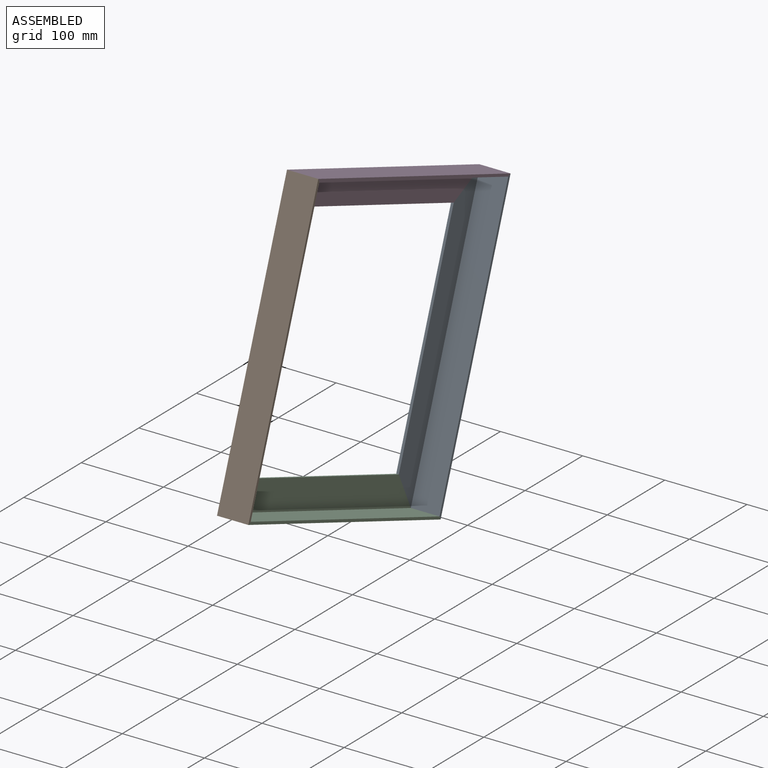
[diagram: assembled view]
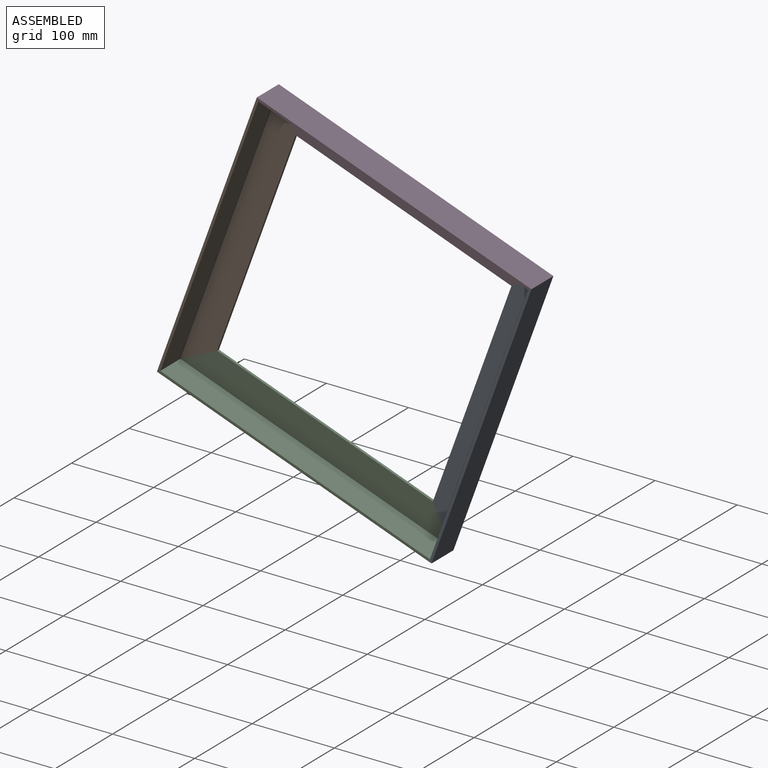
[diagram: assembled view, second angle]
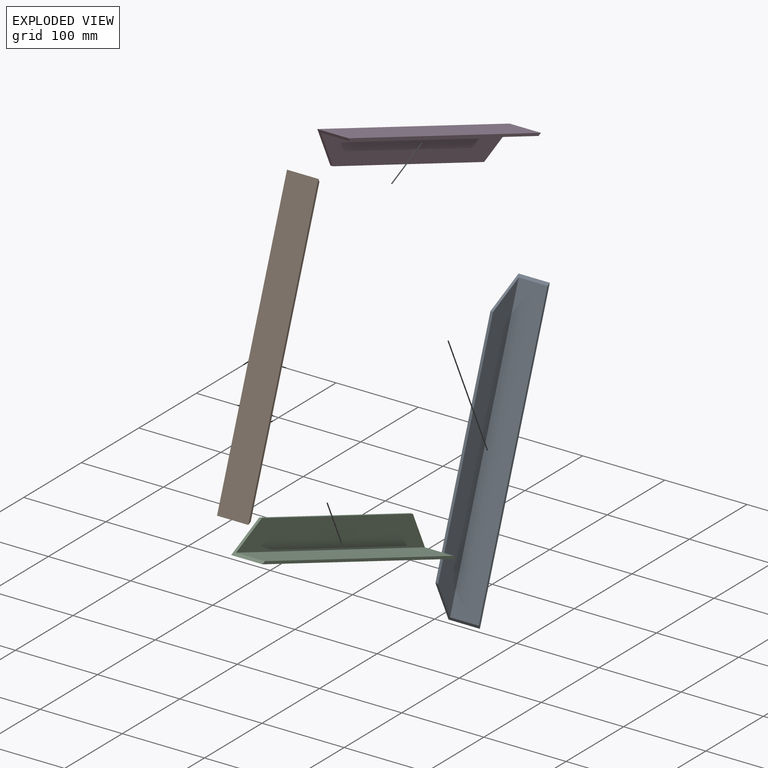
[diagram: exploded view]
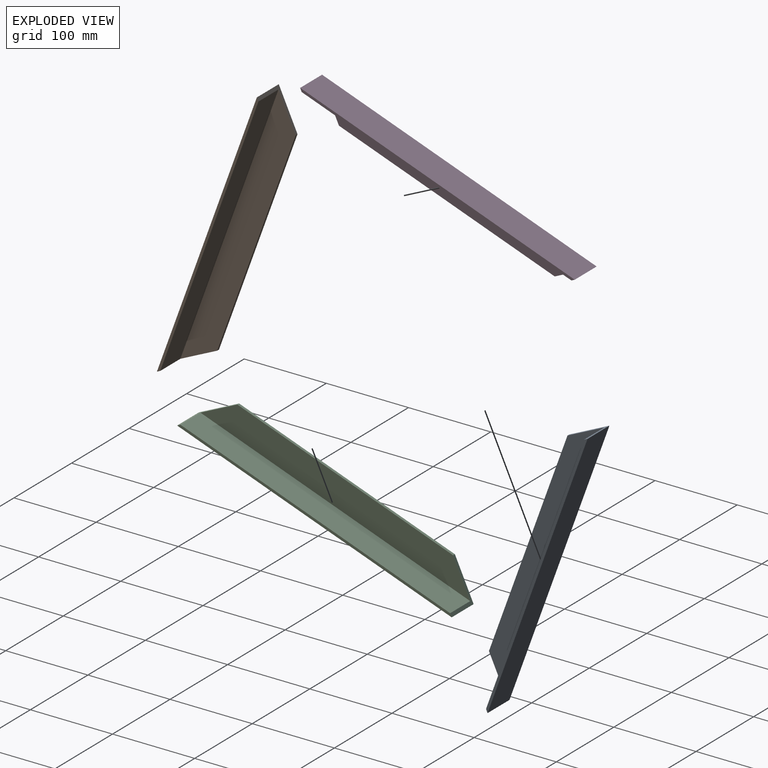
[diagram: exploded view, second angle]
ASSEMBLY  parts=4 mates=3
PART A: 8 faces, bbox 38.1x355.6x38.1 mm
  f0: plane 279.4x3.18mm, normal (0,0,1), area 887.1mm2, adj f1,f3,f6,f7
  f1: plane 355.6x38.1mm, normal (-1,0,0), area 12096.8mm2, adj f0,f5,f6,f7
  f2: plane 349.25x34.93mm, normal (0,0,1), area 12197.6mm2, adj f3,f4,f6,f7
  f3: plane 349.25x34.93mm, normal (1,0,0), area 10977.8mm2, adj f0,f2,f6,f7
  f4: plane 355.6x3.18mm, normal (1,0,0), area 1118.9mm2, adj f2,f5,f6,f7
  f5: plane 355.6x38.1mm, normal (0,0,-1), area 13548.4mm2, adj f1,f4,f6,f7
  f6: plane 38.1x38.1mm, normal (0,0.71,0.71), area 327.9mm2, adj f0,f1,f2,f3,f4,f5
  f7: plane 38.1x38.1mm, normal (0,-0.71,0.71), area 327.9mm2, adj f0,f1,f2,f3,f4,f5
PART B: same geometry as A
PART C: same geometry as A
PART D: same geometry as A
PLACE A rot(axis=(1,0,0),70deg) t=(-175.96,43.29,245.09)mm
PLACE B rot(axis=(-1,0,0),110deg) t=(-175.96,-412.48,32.56)mm
PLACE C rot(axis=(-1,0,0),20deg) t=(-175.96,-78.33,-89.07)mm fixed
PLACE D rot(axis=(1,0,0),160deg) t=(-175.96,-290.86,366.71)mm
MATE fastened A.f6 <-> D.f7  axis (0,-0.42,0.91) through (-172.78,39.22,243.19)mm
MATE fastened B.f7 <-> D.f6  axis (0,0.91,0.42) through (-172.78,-288.96,362.64)mm
MATE fastened B.f6 <-> C.f7  axis (0,0.42,-0.91) through (-172.78,-408.41,34.45)mm
